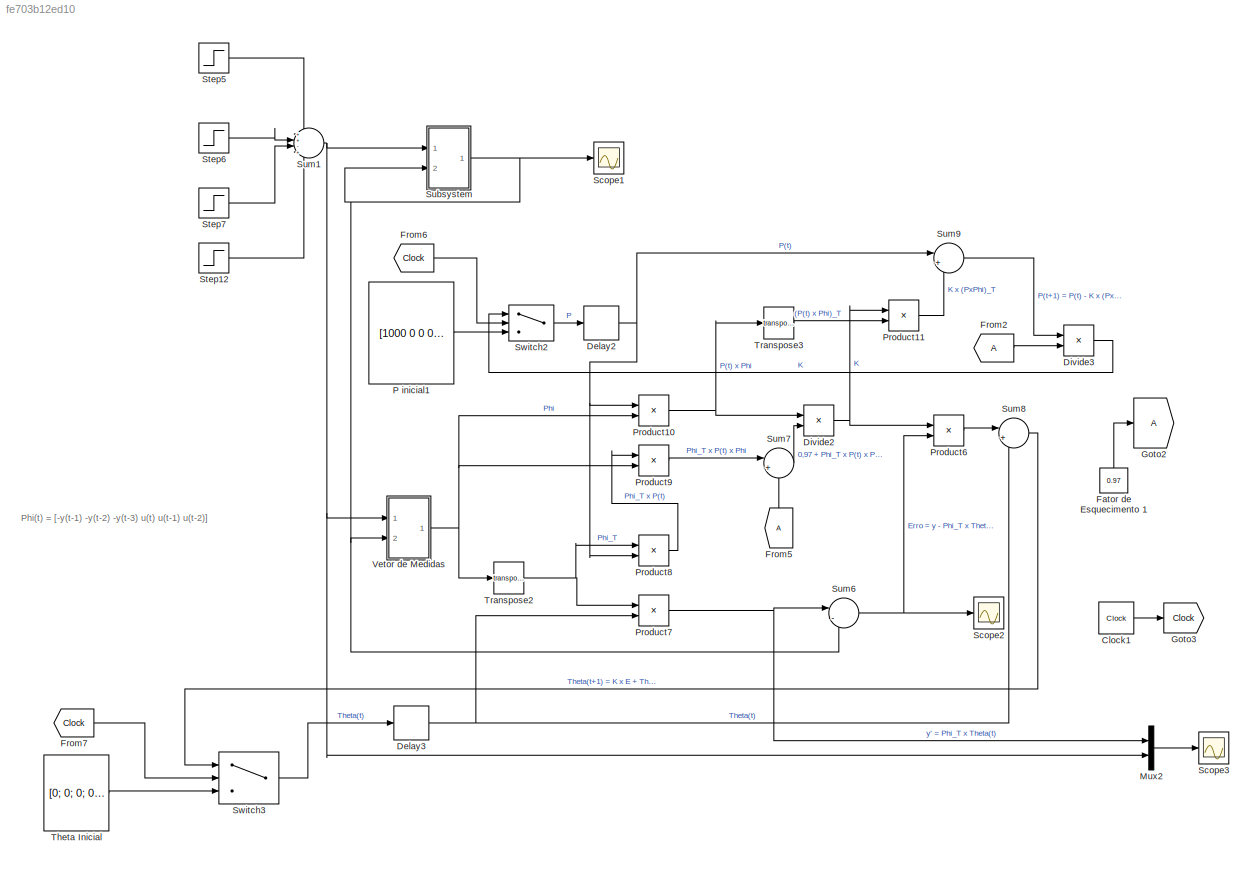
MODEL slx_fe703b12ed10
KIND model
CONFIG AbsTol = auto
CONFIG EnableMultiTasking = off
CONFIG FixedStep = auto
CONFIG MaxStep = auto
CONFIG MinStep = auto
CONFIG RelTol = 1e-3
CONFIG SampleTimeConstraint = Unconstrained
CONFIG Solver = ode45
CONFIG SolverName = ode45
CONFIG StartTime = 0.0
CONFIG StopTime = 10.0
BLOCK [Clock] Clock1
BLOCK [Delay] Delay2
  DelayLength = 1
  InitialCondition = 0
  InputPortMap = u0
  Ports = [1, 1]
  SampleTime = 0.1
BLOCK [Delay] Delay3
  DelayLength = 1
  InitialCondition = 0
  InputPortMap = u0
  Ports = [1, 1]
  SampleTime = 0.1
BLOCK [Product] Divide2
  InputSameDT = off
  Inputs = */
  OutDataTypeStr = Inherit: Inherit via internal rule
  Ports = [2, 1]
  RndMeth = Floor
  SaturateOnIntegerOverflow = off
BLOCK [Product] Divide3
  InputSameDT = off
  Inputs = */
  OutDataTypeStr = Inherit: Inherit via internal rule
  Ports = [2, 1]
  RndMeth = Floor
  SaturateOnIntegerOverflow = off
BLOCK [Constant] Fator de Esquecimento 1
  Value = 0.97
BLOCK [From] From2
BLOCK [From] From5
BLOCK [From] From6
  GotoTag = Clock
BLOCK [From] From7
  GotoTag = Clock
BLOCK [Goto] Goto2
BLOCK [Goto] Goto3
  GotoTag = Clock
BLOCK [Mux] Mux2
  DisplayOption = bar
  Inputs = 2
  Ports = [2, 1]
BLOCK [Constant] P inicial1
  Value = [1000 0 0 0 0 0; 0 1000 0 0 0 0; 0 0 1000 0 0 0; 0 0 0 1000 0 0; 0 0 0 0 1000 0; 0 0 0 0 0 1000]
BLOCK [Product] Product10
  InputSameDT = off
  Multiplication = Matrix(*)
  OutDataTypeStr = Inherit: Inherit via internal rule
  Ports = [2, 1]
  RndMeth = Floor
  SaturateOnIntegerOverflow = off
BLOCK [Product] Product11
  InputSameDT = off
  Multiplication = Matrix(*)
  OutDataTypeStr = Inherit: Inherit via internal rule
  Ports = [2, 1]
  RndMeth = Floor
  SaturateOnIntegerOverflow = off
BLOCK [Product] Product6
  InputSameDT = off
  OutDataTypeStr = Inherit: Inherit via internal rule
  Ports = [2, 1]
  RndMeth = Floor
  SaturateOnIntegerOverflow = off
BLOCK [Product] Product7
  InputSameDT = off
  Multiplication = Matrix(*)
  OutDataTypeStr = Inherit: Inherit via internal rule
  Ports = [2, 1]
  RndMeth = Floor
  SaturateOnIntegerOverflow = off
BLOCK [Product] Product8
  InputSameDT = off
  Multiplication = Matrix(*)
  OutDataTypeStr = Inherit: Inherit via internal rule
  Ports = [2, 1]
  RndMeth = Floor
  SaturateOnIntegerOverflow = off
BLOCK [Product] Product9
  InputSameDT = off
  Multiplication = Matrix(*)
  OutDataTypeStr = Inherit: Inherit via internal rule
  Ports = [2, 1]
  RndMeth = Floor
  SaturateOnIntegerOverflow = off
BLOCK [Scope] Scope1
  Floating = off
  NumInputPorts = 1
  Ports = [1]
  ScopeSpecificationString = Simulink.scopes.TimeScopeBlockCfg('CurrentConfiguration', extmgr.ConfigurationSet(extmgr.Configuration('Core','General UI',true,'FigureColor',[1 1 1]),extmgr.Configuration('Core','Source UI',true),extmgr.Configuration('Sources','WiredSimulink',true,'DataLoggingVariableName','ScopeData2','DataLoggingSaveFormat','StructureWithTime','DataLoggingDecimation','1','DataLoggingDecimateData',true),extmgr.C...<+2917ch>
BLOCK [Scope] Scope2
  Floating = off
  NumInputPorts = 1
  Ports = [1]
  ScopeSpecificationString = Simulink.scopes.TimeScopeBlockCfg('CurrentConfiguration', extmgr.ConfigurationSet(extmgr.Configuration('Core','General UI',true,'FigureColor',[1 1 1]),extmgr.Configuration('Core','Source UI',true),extmgr.Configuration('Sources','WiredSimulink',true,'DataLoggingSaveFormat','StructureWithTime','DataLoggingDecimation','1','DataLoggingDecimateData',true,'DataLoggingVariableName','ScopeData1'),extmgr.C...<+2910ch>
BLOCK [Scope] Scope3
  Floating = off
  NumInputPorts = 1
  Ports = [1]
  ScopeSpecificationString = Simulink.scopes.TimeScopeBlockCfg('CurrentConfiguration', extmgr.ConfigurationSet(extmgr.Configuration('Core','General UI',true,'FigureColor',[1 1 1]),extmgr.Configuration('Core','Source UI',true),extmgr.Configuration('Sources','WiredSimulink',true,'DataLoggingSaveFormat','StructureWithTime','DataLoggingDecimation','1','DataLoggingDecimateData',true),extmgr.Configuration('Visuals','Time Domain',tr...<+2897ch>
BLOCK [Step] Step12
  SampleTime = 0
  Time = 30
BLOCK [Step] Step5
  SampleTime = 0
  Time = 0
BLOCK [Step] Step6
  After = 3
  SampleTime = 0
  Time = 10
BLOCK [Step] Step7
  After = 2
  SampleTime = 0
  Time = 20
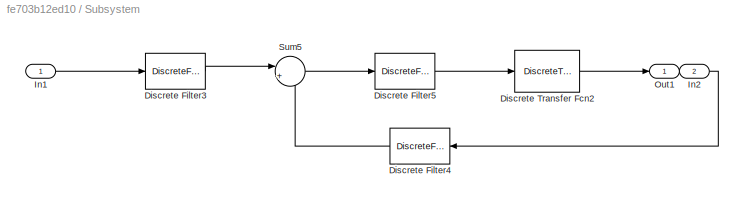
BLOCK [SubSystem] Subsystem
  Ports = [2, 1]
  RequestExecContextInheritance = off
BLOCK [DiscreteFilter] Subsystem/Discrete Filter3
  Denominator = 1
  InputPortMap = u0
  Numerator = T
  Ports = [1, 1]
BLOCK [DiscreteFilter] Subsystem/Discrete Filter4
  Denominator = 1
  InputPortMap = u0
  Numerator = S
  Ports = [1, 1]
BLOCK [DiscreteFilter] Subsystem/Discrete Filter5
  Denominator = R
  InputPortMap = u0
  Numerator = 1
  Ports = [1, 1]
BLOCK [DiscreteTransferFcn] Subsystem/Discrete Transfer Fcn2
  Denominator = den
  InputPortMap = u0
  Numerator = num
  Ports = [1, 1]
BLOCK [Inport] Subsystem/In1
  IconDisplay = Port number
BLOCK [Inport] Subsystem/In2
  IconDisplay = Port number
  Port = 2
BLOCK [Outport] Subsystem/Out1
  IconDisplay = Port number
BLOCK [Sum] Subsystem/Sum5
  IconShape = round
  InputSameDT = off
  Inputs = |+-
  OutDataTypeStr = Inherit: Inherit via internal rule
  Ports = [2, 1]
  SaturateOnIntegerOverflow = off
BLOCK [Sum] Sum1
  IconShape = round
  InputSameDT = off
  Inputs = ++-+
  OutDataTypeStr = Inherit: Inherit via internal rule
  Ports = [4, 1]
  SaturateOnIntegerOverflow = off
BLOCK [Sum] Sum6
  IconShape = round
  InputSameDT = off
  Inputs = |-+
  OutDataTypeStr = Inherit: Inherit via internal rule
  Ports = [2, 1]
  SaturateOnIntegerOverflow = off
BLOCK [Sum] Sum7
  IconShape = round
  InputSameDT = off
  Inputs = |++
  OutDataTypeStr = Inherit: Inherit via internal rule
  Ports = [2, 1]
  SaturateOnIntegerOverflow = off
BLOCK [Sum] Sum8
  IconShape = round
  InputSameDT = off
  Inputs = |++
  OutDataTypeStr = Inherit: Inherit via internal rule
  Ports = [2, 1]
  SaturateOnIntegerOverflow = off
BLOCK [Sum] Sum9
  IconShape = round
  InputSameDT = off
  Inputs = |+-
  OutDataTypeStr = Inherit: Inherit via internal rule
  Ports = [2, 1]
  SaturateOnIntegerOverflow = off
BLOCK [Switch] Switch2
  Criteria = u2 > Threshold
  InputSameDT = off
  SaturateOnIntegerOverflow = off
BLOCK [Switch] Switch3
  Criteria = u2 > Threshold
  InputSameDT = off
  SaturateOnIntegerOverflow = off
BLOCK [Constant] Theta Inicial 
  Value = [0; 0; 0; 0; 0; 0]
BLOCK [Math] Transpose2
  Operator = transpose
  Ports = [1, 1]
BLOCK [Math] Transpose3
  Operator = transpose
  Ports = [1, 1]
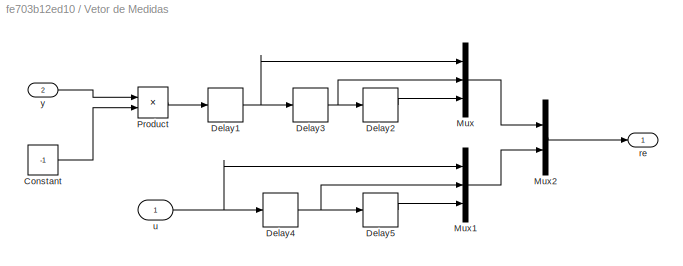
BLOCK [SubSystem] Vetor de Medidas 
  Ports = [2, 1]
  RequestExecContextInheritance = off
BLOCK [Constant] Vetor de Medidas /Constant
  Value = -1
BLOCK [Delay] Vetor de Medidas /Delay1
  DelayLength = 1
  InitialCondition = 0
  InputPortMap = u0
  Ports = [1, 1]
  SampleTime = 0.1
BLOCK [Delay] Vetor de Medidas /Delay2
  DelayLength = 1
  InitialCondition = 0
  InputPortMap = u0
  Ports = [1, 1]
  SampleTime = 0.1
BLOCK [Delay] Vetor de Medidas /Delay3
  DelayLength = 1
  InitialCondition = 0
  InputPortMap = u0
  Ports = [1, 1]
  SampleTime = 0.1
BLOCK [Delay] Vetor de Medidas /Delay4
  DelayLength = 1
  InitialCondition = 0
  InputPortMap = u0
  Ports = [1, 1]
  SampleTime = 0.1
BLOCK [Delay] Vetor de Medidas /Delay5
  DelayLength = 1
  InitialCondition = 0
  InputPortMap = u0
  Ports = [1, 1]
  SampleTime = 0.1
BLOCK [Mux] Vetor de Medidas /Mux
  DisplayOption = bar
  Inputs = 3
  Ports = [3, 1]
BLOCK [Mux] Vetor de Medidas /Mux1
  DisplayOption = bar
  Inputs = 3
  Ports = [3, 1]
BLOCK [Mux] Vetor de Medidas /Mux2
  DisplayOption = bar
  Inputs = 2
  Ports = [2, 1]
BLOCK [Product] Vetor de Medidas /Product
  InputSameDT = off
  OutDataTypeStr = Inherit: Inherit via internal rule
  Ports = [2, 1]
  RndMeth = Floor
  SaturateOnIntegerOverflow = off
BLOCK [Outport] Vetor de Medidas /re
  IconDisplay = Port number
BLOCK [Inport] Vetor de Medidas /u
  IconDisplay = Port number
BLOCK [Inport] Vetor de Medidas /y
  IconDisplay = Port number
  Port = 2
ANNOTATION (root): Phi(t) = [-y(t-1) -y(t-2) -y(t-3) u(t) u(t-1) u(t-2)]
LINE Clock1:1 -> Goto3:1
NET Delay2:1 -> Product10:1, Product8:2, Sum9:1
NET Delay3:1 -> Product7:2, Sum8:2
NET Divide2:1 -> Product11:1, Product6:1
LINE Divide3:1 -> Switch2:1
LINE Fator de Esquecimento 1:1 -> Goto2:1
LINE From2:1 -> Divide3:2
LINE From5:1 -> Sum7:2
LINE From6:1 -> Switch2:2
LINE From7:1 -> Switch3:2
LINE Mux2:1 -> Scope3:1
LINE P inicial1:1 -> Switch2:3
NET Product10:1 -> Divide2:1, Transpose3:1
LINE Product11:1 -> Sum9:2
LINE Product6:1 -> Sum8:1
NET Product7:1 -> Mux2:1, Sum6:1
LINE Product8:1 -> Product9:1
LINE Product9:1 -> Sum7:1
LINE Step12:1 -> Sum1:4
LINE Step5:1 -> Sum1:1
LINE Step6:1 -> Sum1:2
LINE Step7:1 -> Sum1:3
LINE Subsystem/Discrete Filter3:1 -> Subsystem/Sum5:1
LINE Subsystem/Discrete Filter4:1 -> Subsystem/Sum5:2
LINE Subsystem/Discrete Filter5:1 -> Subsystem/Discrete Transfer Fcn2:1
LINE Subsystem/Discrete Transfer Fcn2:1 -> Subsystem/Out1:1
LINE Subsystem/In1:1 -> Subsystem/Discrete Filter3:1
LINE Subsystem/In2:1 -> Subsystem/Discrete Filter4:1
LINE Subsystem/Sum5:1 -> Subsystem/Discrete Filter5:1
NET Subsystem:1 -> Scope1:1, Subsystem:2, Sum6:2, Vetor de Medidas :2
NET Sum1:1 -> Mux2:2, Subsystem:1, Vetor de Medidas :1
NET Sum6:1 -> Product6:2, Scope2:1
LINE Sum7:1 -> Divide2:2
LINE Sum8:1 -> Switch3:1
LINE Sum9:1 -> Divide3:1
LINE Switch2:1 -> Delay2:1
LINE Switch3:1 -> Delay3:1
LINE Theta Inicial :1 -> Switch3:3
NET Transpose2:1 -> Product7:1, Product8:1
LINE Transpose3:1 -> Product11:2
LINE Vetor de Medidas /Constant:1 -> Vetor de Medidas /Product:2
NET Vetor de Medidas /Delay1:1 -> Vetor de Medidas /Delay3:1, Vetor de Medidas /Mux:1
LINE Vetor de Medidas /Delay2:1 -> Vetor de Medidas /Mux:3
NET Vetor de Medidas /Delay3:1 -> Vetor de Medidas /Delay2:1, Vetor de Medidas /Mux:2
NET Vetor de Medidas /Delay4:1 -> Vetor de Medidas /Delay5:1, Vetor de Medidas /Mux1:2
LINE Vetor de Medidas /Delay5:1 -> Vetor de Medidas /Mux1:3
LINE Vetor de Medidas /Mux1:1 -> Vetor de Medidas /Mux2:2
LINE Vetor de Medidas /Mux2:1 -> Vetor de Medidas /re:1
LINE Vetor de Medidas /Mux:1 -> Vetor de Medidas /Mux2:1
LINE Vetor de Medidas /Product:1 -> Vetor de Medidas /Delay1:1
NET Vetor de Medidas /u:1 -> Vetor de Medidas /Delay4:1, Vetor de Medidas /Mux1:1
LINE Vetor de Medidas /y:1 -> Vetor de Medidas /Product:1
NET Vetor de Medidas :1 -> Product10:2, Product9:2, Transpose2:1
note: NET lines group one-source signal fan-out (src -> all destinations, sorted); 1:1 wires keep LINE
